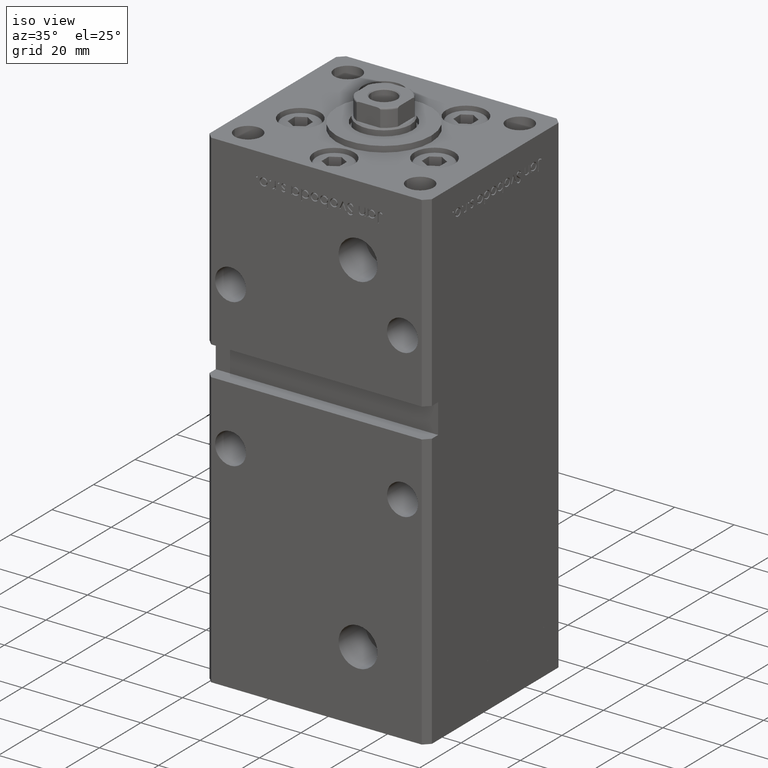
[diagram: clean part render]
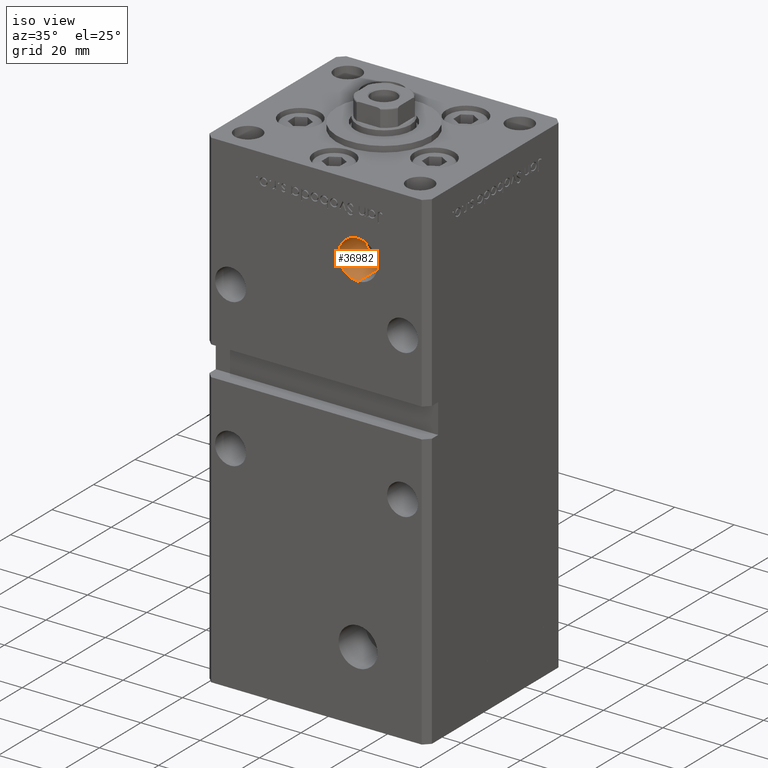
[diagram: same view with one face highlighted and labeled with its STEP entity id]
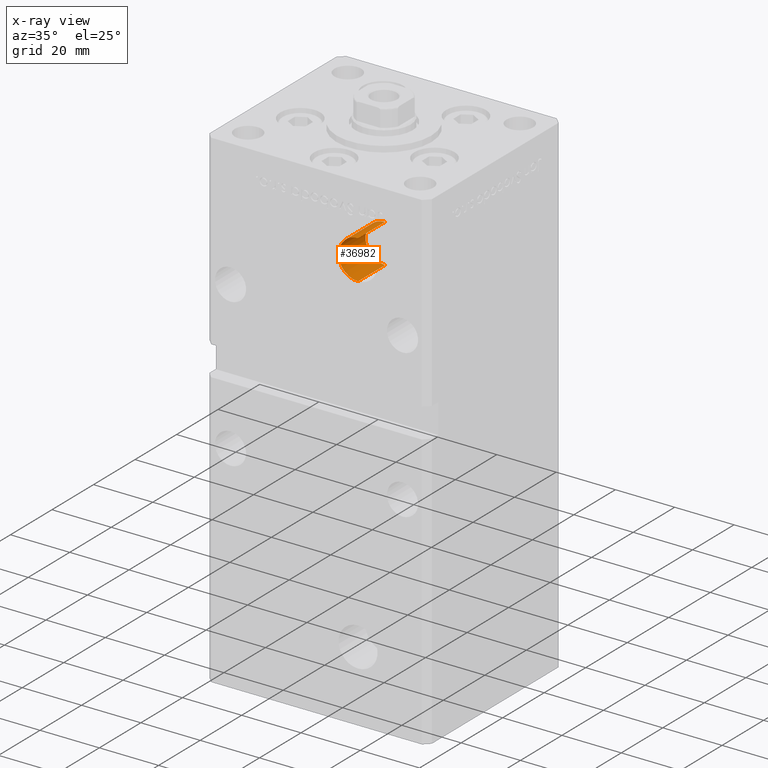
[diagram: x-ray of the same camera — body ghosted, the highlighted face saturated]
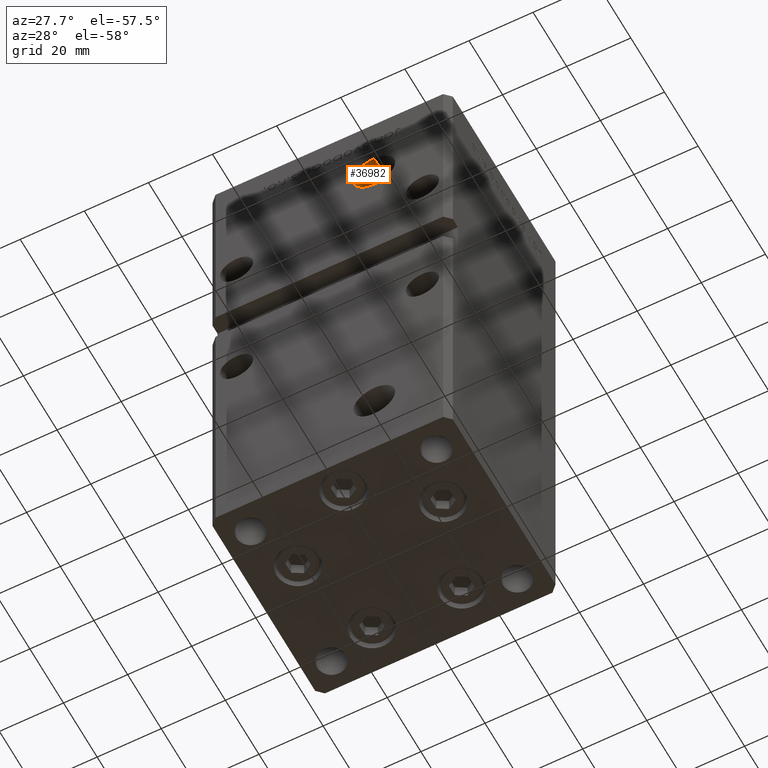
[diagram: same view with one face highlighted and labeled with its STEP entity id]
A machine part, iso view. The second image highlights one B-rep face of the part: STEP entity #36982.
The next image is the same camera in x-ray: the body ghosted, the highlighted face saturated — about 0% of this face is hidden behind the body in this view.
A second angle (auxiliary view) of the same face is appended — the face is thin or edge-on in the first view.
In plain terms, the highlighted cylindrical surface (edge-blend (fillet) strip) has radius 6.58 mm, axis along (-0, -1, -0).
Its self-contained STEP definition (entity closure, byte-faithful):
#2298 = FACE_OUTER_BOUND ( 'NONE', #26861, .T. ) ;
#3932 = VERTEX_POINT ( 'NONE', #36038 ) ;
#4054 = AXIS2_PLACEMENT_3D ( 'NONE', #23536, #15193, #39917 ) ;
#4845 = CARTESIAN_POINT ( 'NONE',  ( 13.99999999999999112, -19.50000000000000355, 120.4200000000000017 ) ) ;
#5375 = AXIS2_PLACEMENT_3D ( 'NONE', #33715, #21096, #42042 ) ;
#6333 = CARTESIAN_POINT ( 'NONE',  ( 13.99999999999999112, -19.50000000000000355, 133.5800000000000125 ) ) ;
#6738 = ORIENTED_EDGE ( 'NONE', *, *, #19090, .T. ) ;
#10095 = LINE ( 'NONE', #6333, #15202 ) ;
#12476 = EDGE_CURVE ( 'NONE', #50138, #3932, #26318, .T. ) ;
#12528 = CARTESIAN_POINT ( 'NONE',  ( 13.99999999999999112, -32.50000000000000000, 127.0000000000000000 ) ) ;
#15193 = DIRECTION ( 'NONE',  ( -0.000000000000000000, -1.000000000000000000, -0.000000000000000000 ) ) ;
#15202 = VECTOR ( 'NONE', #22726, 1000.000000000000000 ) ;
#15726 = CIRCLE ( 'NONE', #5375, 6.580000000000002736 ) ;
#16396 = CARTESIAN_POINT ( 'NONE',  ( 13.99999999999999112, -32.50000000000000000, 133.5800000000000125 ) ) ;
#18697 = CYLINDRICAL_SURFACE ( 'NONE', #4054, 6.580000000000002736 ) ;
#19090 = EDGE_CURVE ( 'NONE', #50138, #31746, #15726, .T. ) ;
#21096 = DIRECTION ( 'NONE',  ( -0.000000000000000000, 1.000000000000000000, -0.000000000000000000 ) ) ;
#22726 = DIRECTION ( 'NONE',  ( -0.000000000000000000, -1.000000000000000000, -0.000000000000000000 ) ) ;
#23536 = CARTESIAN_POINT ( 'NONE',  ( 13.99999999999999112, -19.50000000000000355, 127.0000000000000000 ) ) ;
#26318 = LINE ( 'NONE', #34669, #43829 ) ;
#26861 = EDGE_LOOP ( 'NONE', ( #6738, #39158, #41819, #34954 ) ) ;
#28803 = VERTEX_POINT ( 'NONE', #16396 ) ;
#31644 = CARTESIAN_POINT ( 'NONE',  ( 13.99999999999999112, -19.50000000000000355, 133.5800000000000125 ) ) ;
#31746 = VERTEX_POINT ( 'NONE', #31644 ) ;
#32482 = CIRCLE ( 'NONE', #46191, 6.580000000000002736 ) ;
#33715 = CARTESIAN_POINT ( 'NONE',  ( 13.99999999999999112, -19.50000000000000355, 127.0000000000000000 ) ) ;
#34669 = CARTESIAN_POINT ( 'NONE',  ( 13.99999999999999112, -19.50000000000000355, 120.4200000000000017 ) ) ;
#34954 = ORIENTED_EDGE ( 'NONE', *, *, #12476, .F. ) ;
#36038 = CARTESIAN_POINT ( 'NONE',  ( 13.99999999999999112, -32.50000000000000000, 120.4200000000000017 ) ) ;
#36961 = EDGE_CURVE ( 'NONE', #31746, #28803, #10095, .T. ) ;
#36982 = ADVANCED_FACE ( 'NONE', ( #2298 ), #18697, .F. ) ;
#39158 = ORIENTED_EDGE ( 'NONE', *, *, #36961, .T. ) ;
#39917 = DIRECTION ( 'NONE',  ( 0.000000000000000000, 0.000000000000000000, -1.000000000000000000 ) ) ;
#40052 = EDGE_CURVE ( 'NONE', #3932, #28803, #32482, .T. ) ;
#40503 = DIRECTION ( 'NONE',  ( -0.000000000000000000, 1.000000000000000000, -0.000000000000000000 ) ) ;
#41819 = ORIENTED_EDGE ( 'NONE', *, *, #40052, .F. ) ;
#42042 = DIRECTION ( 'NONE',  ( 0.000000000000000000, 0.000000000000000000, -1.000000000000000000 ) ) ;
#43829 = VECTOR ( 'NONE', #51076, 1000.000000000000000 ) ;
#46191 = AXIS2_PLACEMENT_3D ( 'NONE', #12528, #40503, #48837 ) ;
#48837 = DIRECTION ( 'NONE',  ( 0.000000000000000000, 0.000000000000000000, -1.000000000000000000 ) ) ;
#50138 = VERTEX_POINT ( 'NONE', #4845 ) ;
#51076 = DIRECTION ( 'NONE',  ( -0.000000000000000000, -1.000000000000000000, -0.000000000000000000 ) ) ;